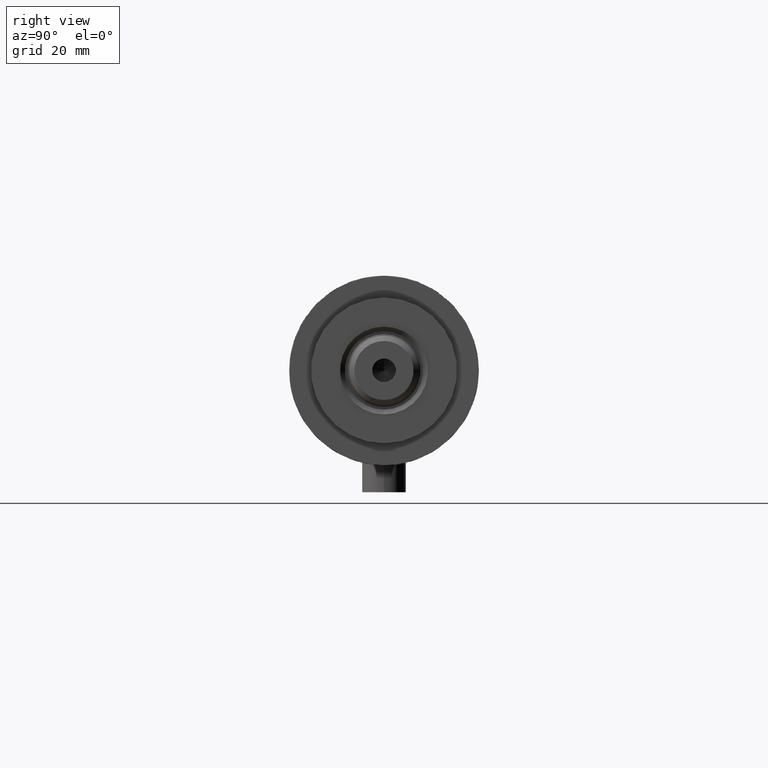
[diagram: clean part render]
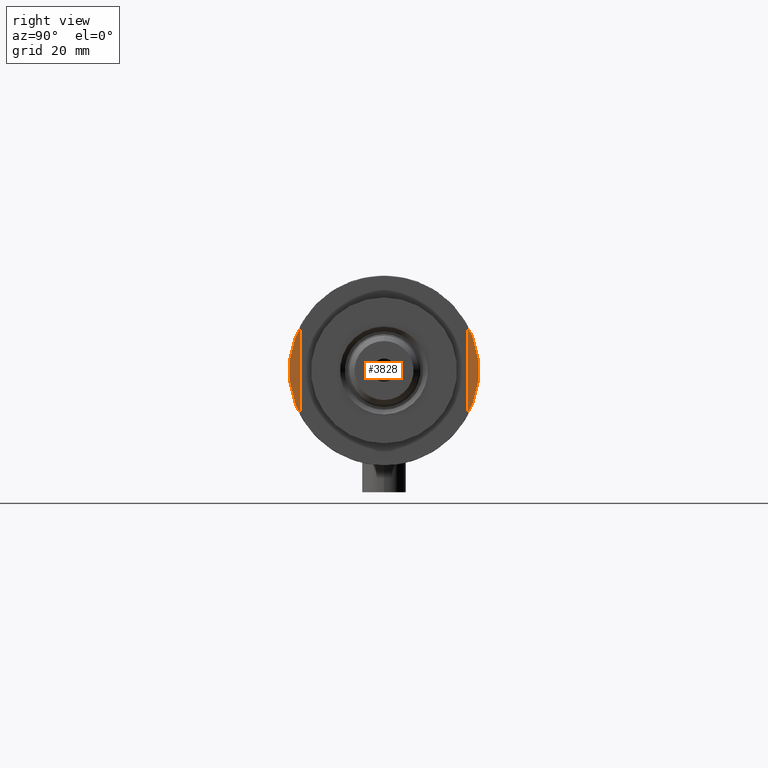
[diagram: same view with one face highlighted and labeled with its STEP entity id]
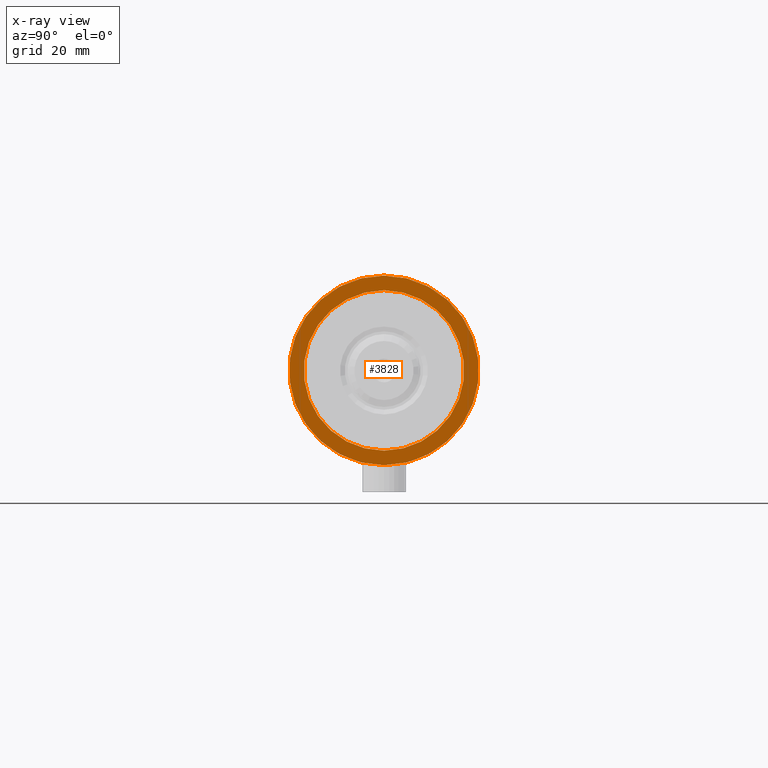
[diagram: x-ray of the same camera — body ghosted, the highlighted face saturated]
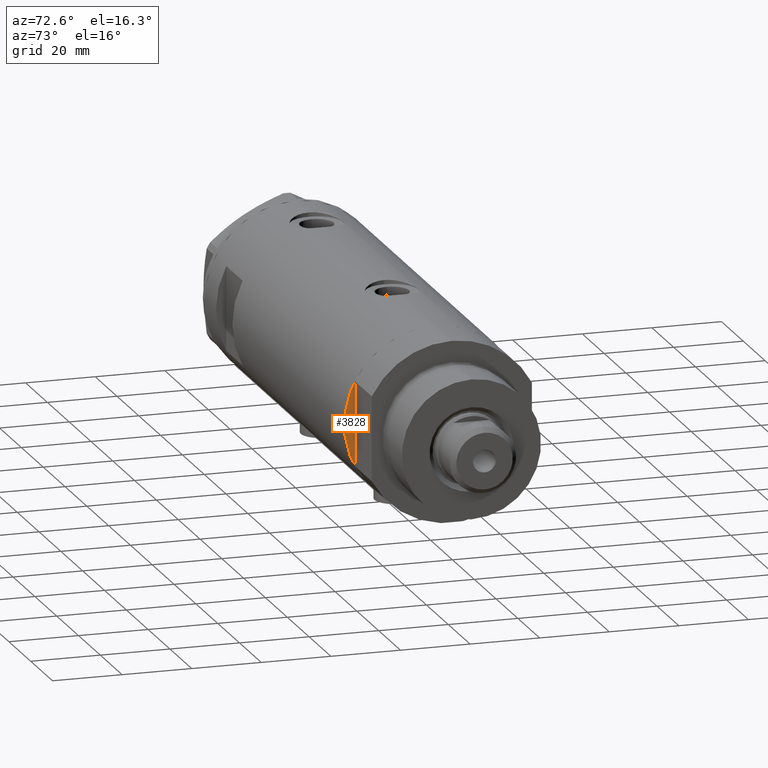
[diagram: same view with one face highlighted and labeled with its STEP entity id]
A machine part, right view. The second image highlights one B-rep face of the part: STEP entity #3828.
The next image is the same camera in x-ray: the body ghosted, the highlighted face saturated — about 0% of this face is hidden behind the body in this view.
A second angle (auxiliary view) of the same face is appended — the face is thin or edge-on in the first view.
In plain terms, the highlighted planar face has unit normal (-1, -0, 0).
Its self-contained STEP definition (entity closure, byte-faithful):
#37 = CIRCLE ( 'NONE', #2345, 22.00000000000000000 ) ;
#80 = DIRECTION ( 'NONE',  ( 1.000000000000000000, 0.000000000000000000, 0.000000000000000000 ) ) ;
#218 = CARTESIAN_POINT ( 'NONE',  ( 22.00000000000000000, 2.694222958124176809E-15, -63.95000000000000995 ) ) ;
#370 = ORIENTED_EDGE ( 'NONE', *, *, #3340, .F. ) ;
#486 = DIRECTION ( 'NONE',  ( 1.000000000000000000, 0.000000000000000000, -0.000000000000000000 ) ) ;
#732 = ORIENTED_EDGE ( 'NONE', *, *, #2954, .F. ) ;
#805 = DIRECTION ( 'NONE',  ( 0.000000000000000000, 0.000000000000000000, -1.000000000000000000 ) ) ;
#996 = DIRECTION ( 'NONE',  ( 0.000000000000000000, 0.000000000000000000, 1.000000000000000000 ) ) ;
#1023 = VERTEX_POINT ( 'NONE', #218 ) ;
#1176 = DIRECTION ( 'NONE',  ( -1.000000000000000000, 0.000000000000000000, 0.000000000000000000 ) ) ;
#1308 = ORIENTED_EDGE ( 'NONE', *, *, #3930, .F. ) ;
#1394 = AXIS2_PLACEMENT_3D ( 'NONE', #2906, #996, #1756 ) ;
#1592 = VERTEX_POINT ( 'NONE', #2385 ) ;
#1714 = CIRCLE ( 'NONE', #2338, 22.00000000000000000 ) ;
#1719 = CARTESIAN_POINT ( 'NONE',  ( 0.000000000000000000, 0.000000000000000000, -63.95000000000000995 ) ) ;
#1756 = DIRECTION ( 'NONE',  ( 1.000000000000000000, 0.000000000000000000, 0.000000000000000000 ) ) ;
#1879 = AXIS2_PLACEMENT_3D ( 'NONE', #1977, #3899, #486 ) ;
#1950 = VERTEX_POINT ( 'NONE', #3669 ) ;
#1976 = CARTESIAN_POINT ( 'NONE',  ( 0.000000000000000000, 0.000000000000000000, -63.95000000000000995 ) ) ;
#1977 = CARTESIAN_POINT ( 'NONE',  ( 0.000000000000000000, 0.000000000000000000, -63.95000000000000995 ) ) ;
#2117 = EDGE_CURVE ( 'NONE', #4814, #1592, #2331, .T. ) ;
#2175 = ORIENTED_EDGE ( 'NONE', *, *, #2117, .F. ) ;
#2218 = CARTESIAN_POINT ( 'NONE',  ( 26.00000000000000355, 0.000000000000000000, -63.95000000000000995 ) ) ;
#2331 = CIRCLE ( 'NONE', #4273, 26.00000000000000355 ) ;
#2338 = AXIS2_PLACEMENT_3D ( 'NONE', #4528, #805, #1176 ) ;
#2345 = AXIS2_PLACEMENT_3D ( 'NONE', #1719, #3206, #2477 ) ;
#2374 = FACE_BOUND ( 'NONE', #4169, .T. ) ;
#2385 = CARTESIAN_POINT ( 'NONE',  ( -26.00000000000000355, 3.184081677783118585E-15, -63.95000000000000995 ) ) ;
#2477 = DIRECTION ( 'NONE',  ( -1.000000000000000000, 0.000000000000000000, 0.000000000000000000 ) ) ;
#2906 = CARTESIAN_POINT ( 'NONE',  ( 0.000000000000000000, 0.000000000000000000, -63.95000000000000995 ) ) ;
#2954 = EDGE_CURVE ( 'NONE', #1023, #1950, #1714, .T. ) ;
#3190 = EDGE_LOOP ( 'NONE', ( #2175, #1308 ) ) ;
#3206 = DIRECTION ( 'NONE',  ( 0.000000000000000000, 0.000000000000000000, -1.000000000000000000 ) ) ;
#3340 = EDGE_CURVE ( 'NONE', #1950, #1023, #37, .T. ) ;
#3361 = CIRCLE ( 'NONE', #1394, 26.00000000000000355 ) ;
#3669 = CARTESIAN_POINT ( 'NONE',  ( -22.00000000000000000, 0.000000000000000000, -63.95000000000000995 ) ) ;
#3750 = DIRECTION ( 'NONE',  ( 0.000000000000000000, 0.000000000000000000, 1.000000000000000000 ) ) ;
#3828 = ADVANCED_FACE ( 'NONE', ( #2374, #4614 ), #3845, .F. ) ;
#3845 = PLANE ( 'NONE',  #1879 ) ;
#3899 = DIRECTION ( 'NONE',  ( 0.000000000000000000, 0.000000000000000000, 1.000000000000000000 ) ) ;
#3930 = EDGE_CURVE ( 'NONE', #1592, #4814, #3361, .T. ) ;
#4169 = EDGE_LOOP ( 'NONE', ( #370, #732 ) ) ;
#4273 = AXIS2_PLACEMENT_3D ( 'NONE', #1976, #3750, #80 ) ;
#4528 = CARTESIAN_POINT ( 'NONE',  ( 0.000000000000000000, 0.000000000000000000, -63.95000000000000995 ) ) ;
#4614 = FACE_OUTER_BOUND ( 'NONE', #3190, .T. ) ;
#4814 = VERTEX_POINT ( 'NONE', #2218 ) ;